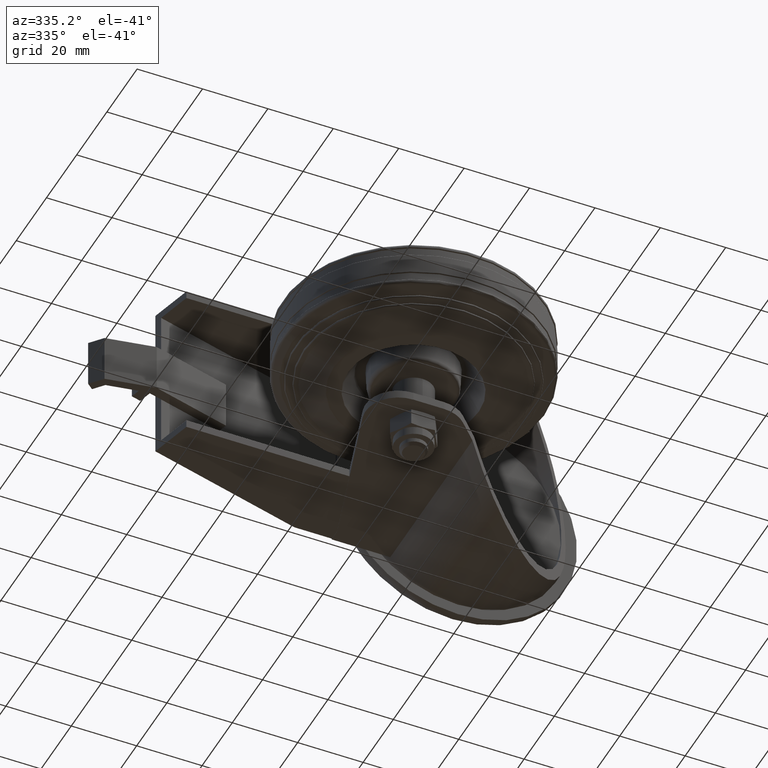
[diagram: clean part render]
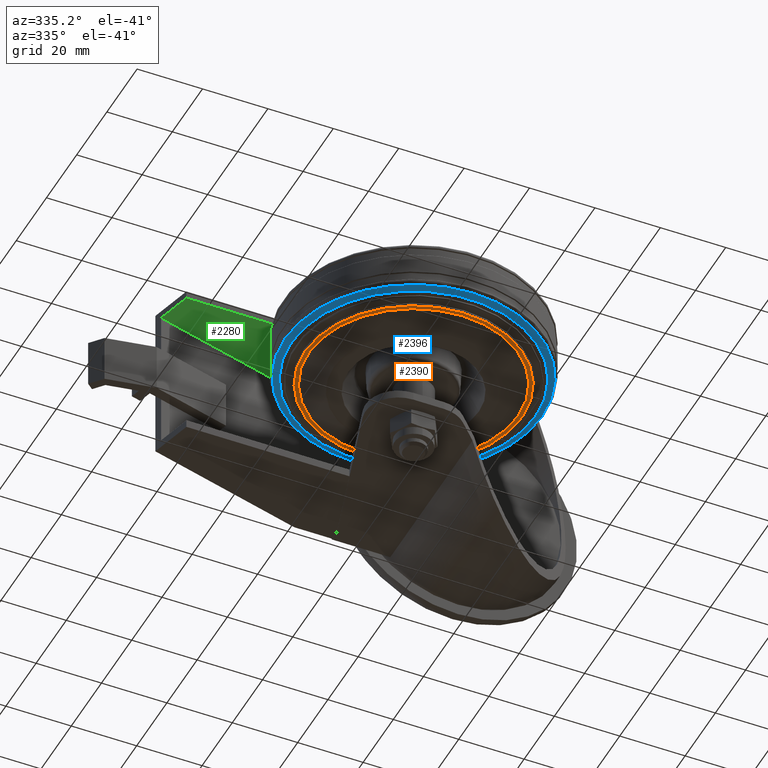
[diagram: same view with three faces highlighted in distinct colors, each labeled with its STEP entity id]
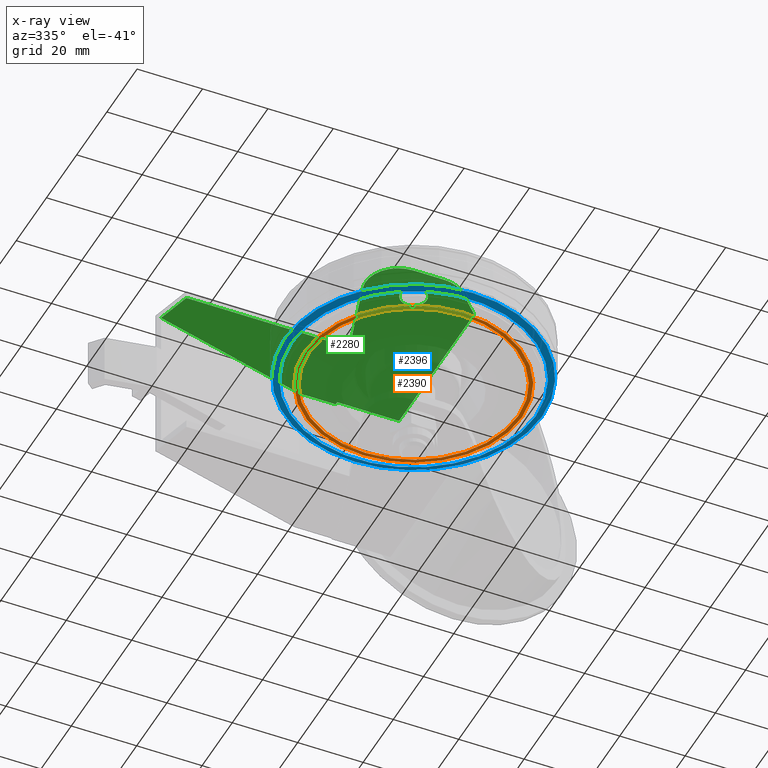
[diagram: x-ray of the same camera — body ghosted, the three highlighted faces saturated]
A machine part, auxiliary view with three faces highlighted in distinct colors.
The next image is the same camera in x-ray (body ghosted, the three faces saturated) — at least one of them is partly hidden behind the body in this view.
Their STEP definitions:

[orange] entity #2390 — the highlighted planar face has unit normal (0, 0, -1).
#203=FACE_BOUND('',#584,.T.);
#276=PLANE('',#2759);
#409=FACE_OUTER_BOUND('',#583,.T.);
#583=EDGE_LOOP('',(#2149));
#584=EDGE_LOOP('',(#2150));
#710=CIRCLE('',#2758,32.);
#711=CIRCLE('',#2760,33.2100878656983);
#1219=VERTEX_POINT('',#4253);
#1220=VERTEX_POINT('',#4257);
#1531=EDGE_CURVE('',#1219,#1219,#710,.T.);
#1533=EDGE_CURVE('',#1220,#1220,#711,.T.);
#2149=ORIENTED_EDGE('',*,*,#1533,.T.);
#2150=ORIENTED_EDGE('',*,*,#1531,.F.);
#2390=ADVANCED_FACE('',(#409,#203),#276,.T.);
#2758=AXIS2_PLACEMENT_3D('',#4254,#3426,#3427);
#2759=AXIS2_PLACEMENT_3D('',#4256,#3429,#3430);
#2760=AXIS2_PLACEMENT_3D('',#4258,#3431,#3432);
#3426=DIRECTION('center_axis',(6.12323399573677E-17,0.,-1.));
#3427=DIRECTION('ref_axis',(-1.,0.,-6.12323399573677E-17));
#3429=DIRECTION('center_axis',(6.12323399573677E-17,0.,-1.));
#3430=DIRECTION('ref_axis',(-1.,0.,-6.12323399573677E-17));
#3431=DIRECTION('center_axis',(6.12323399573677E-17,0.,-1.));
#3432=DIRECTION('ref_axis',(-1.,0.,-6.12323399573677E-17));
#4253=CARTESIAN_POINT('',(-32.,0.,-9.74537909368268));
#4254=CARTESIAN_POINT('Origin',(5.96732365677801E-16,0.,-9.74537909368268));
#4256=CARTESIAN_POINT('Origin',(-32.,0.,-9.74537909368268));
#4257=CARTESIAN_POINT('',(33.2100878656983,-4.06706278041298E-15,-9.74537909368268));
#4258=CARTESIAN_POINT('Origin',(5.96732365677801E-16,0.,-9.74537909368268));

[blue] entity #2396 — the highlighted conical surface has half-angle 71 deg.
#101=CONICAL_SURFACE('',#2775,37.3150280989202,1.23918376891597);
#415=FACE_OUTER_BOUND('',#592,.T.);
#592=EDGE_LOOP('',(#2168,#2169,#2170,#2171,#2172,#2173));
#719=CIRCLE('',#2773,37.3150280989202);
#720=CIRCLE('',#2774,37.3150280989202);
#721=CIRCLE('',#2776,39.3255681544572);
#722=CIRCLE('',#2777,39.3255681544572);
#886=LINE('',#4284,#1030);
#1030=VECTOR('',#3467,37.3150280989202);
#1225=VERTEX_POINT('',#4274);
#1226=VERTEX_POINT('',#4276);
#1227=VERTEX_POINT('',#4280);
#1228=VERTEX_POINT('',#4281);
#1541=EDGE_CURVE('',#1225,#1226,#719,.T.);
#1542=EDGE_CURVE('',#1226,#1225,#720,.T.);
#1543=EDGE_CURVE('',#1227,#1228,#721,.T.);
#1544=EDGE_CURVE('',#1228,#1227,#722,.T.);
#1545=EDGE_CURVE('',#1227,#1226,#886,.T.);
#2168=ORIENTED_EDGE('',*,*,#1543,.T.);
#2169=ORIENTED_EDGE('',*,*,#1544,.T.);
#2170=ORIENTED_EDGE('',*,*,#1545,.T.);
#2171=ORIENTED_EDGE('',*,*,#1541,.F.);
#2172=ORIENTED_EDGE('',*,*,#1542,.F.);
#2173=ORIENTED_EDGE('',*,*,#1545,.F.);
#2396=ADVANCED_FACE('',(#415),#101,.T.);
#2773=AXIS2_PLACEMENT_3D('',#4277,#3457,#3458);
#2774=AXIS2_PLACEMENT_3D('',#4278,#3459,#3460);
#2775=AXIS2_PLACEMENT_3D('',#4279,#3461,#3462);
#2776=AXIS2_PLACEMENT_3D('',#4282,#3463,#3464);
#2777=AXIS2_PLACEMENT_3D('',#4283,#3465,#3466);
#3457=DIRECTION('center_axis',(6.12323399573677E-17,0.,-1.));
#3458=DIRECTION('ref_axis',(-1.,0.,-6.12323399573677E-17));
#3459=DIRECTION('center_axis',(6.12323399573677E-17,0.,-1.));
#3460=DIRECTION('ref_axis',(-1.,0.,-6.12323399573677E-17));
#3461=DIRECTION('center_axis',(-6.12323399573677E-17,0.,1.));
#3462=DIRECTION('ref_axis',(1.,0.,6.12323399573677E-17));
#3463=DIRECTION('center_axis',(6.12323399573677E-17,0.,-1.));
#3464=DIRECTION('ref_axis',(-1.,0.,-6.12323399573677E-17));
#3465=DIRECTION('center_axis',(6.12323399573677E-17,0.,-1.));
#3466=DIRECTION('ref_axis',(-1.,0.,-6.12323399573677E-17));
#3467=DIRECTION('',(0.945518575599316,1.15792629714207E-16,-0.32556815445716));
#4274=CARTESIAN_POINT('',(37.3150280989202,-4.56977297214362E-15,-7.91526815381396));
#4276=CARTESIAN_POINT('',(-37.3150280989202,0.,-7.91526815381397));
#4277=CARTESIAN_POINT('Origin',(4.84670390448063E-16,0.,-7.91526815381396));
#4278=CARTESIAN_POINT('Origin',(4.84670390448063E-16,0.,-7.91526815381396));
#4279=CARTESIAN_POINT('Origin',(4.84670390448063E-16,0.,-7.91526815381396));
#4280=CARTESIAN_POINT('',(-39.3255681544572,0.,-7.22298369506767));
#4281=CARTESIAN_POINT('',(39.3255681544572,-4.81599311650071E-15,-7.22298369506767));
#4282=CARTESIAN_POINT('Origin',(4.42280193122907E-16,0.,-7.22298369506767));
#4283=CARTESIAN_POINT('Origin',(4.42280193122907E-16,0.,-7.22298369506767));
#4284=CARTESIAN_POINT('',(-37.3150280989202,-4.56977297214362E-15,-7.91526815381396));

[green] entity #2280 — the highlighted planar face has unit normal (0, 0, -1).
#183=FACE_BOUND('',#454,.T.);
#219=PLANE('',#2563);
#299=FACE_OUTER_BOUND('',#453,.T.);
#453=EDGE_LOOP('',(#1676,#1677,#1678,#1679,#1680,#1681,#1682,#1683,#1684,
#1685,#1686,#1687));
#454=EDGE_LOOP('',(#1688));
#614=CIRCLE('',#2536,10.);
#618=CIRCLE('',#2547,10.);
#627=CIRCLE('',#2564,4.);
#759=LINE('',#3593,#903);
#772=LINE('',#3629,#916);
#777=LINE('',#3641,#921);
#783=LINE('',#3660,#927);
#793=LINE('',#3689,#937);
#794=LINE('',#3691,#938);
#795=LINE('',#3693,#939);
#796=LINE('',#3695,#940);
#797=LINE('',#3697,#941);
#798=LINE('',#3698,#942);
#903=VECTOR('',#2852,1000.);
#916=VECTOR('',#2881,1000.);
#921=VECTOR('',#2892,1000.);
#927=VECTOR('',#2916,1000.);
#937=VECTOR('',#2946,1000.);
#938=VECTOR('',#2947,1000.);
#939=VECTOR('',#2948,1000.);
#940=VECTOR('',#2949,1000.);
#941=VECTOR('',#2950,1000.);
#942=VECTOR('',#2951,1000.);
#1051=VERTEX_POINT('',#3590);
#1052=VERTEX_POINT('',#3592);
#1059=VERTEX_POINT('',#3610);
#1060=VERTEX_POINT('',#3611);
#1067=VERTEX_POINT('',#3628);
#1071=VERTEX_POINT('',#3639);
#1075=VERTEX_POINT('',#3659);
#1084=VERTEX_POINT('',#3688);
#1085=VERTEX_POINT('',#3690);
#1086=VERTEX_POINT('',#3692);
#1087=VERTEX_POINT('',#3694);
#1088=VERTEX_POINT('',#3696);
#1089=VERTEX_POINT('',#3699);
#1259=EDGE_CURVE('',#1051,#1052,#759,.T.);
#1268=EDGE_CURVE('',#1059,#1060,#614,.T.);
#1276=EDGE_CURVE('',#1059,#1067,#772,.T.);
#1283=EDGE_CURVE('',#1060,#1071,#777,.T.);
#1288=EDGE_CURVE('',#1071,#1052,#618,.T.);
#1294=EDGE_CURVE('',#1067,#1075,#783,.F.);
#1308=EDGE_CURVE('',#1084,#1051,#793,.T.);
#1309=EDGE_CURVE('',#1085,#1084,#794,.T.);
#1310=EDGE_CURVE('',#1086,#1085,#795,.T.);
#1311=EDGE_CURVE('',#1087,#1086,#796,.T.);
#1312=EDGE_CURVE('',#1088,#1087,#797,.T.);
#1313=EDGE_CURVE('',#1075,#1088,#798,.T.);
#1314=EDGE_CURVE('',#1089,#1089,#627,.F.);
#1676=ORIENTED_EDGE('',*,*,#1288,.T.);
#1677=ORIENTED_EDGE('',*,*,#1259,.F.);
#1678=ORIENTED_EDGE('',*,*,#1308,.F.);
#1679=ORIENTED_EDGE('',*,*,#1309,.F.);
#1680=ORIENTED_EDGE('',*,*,#1310,.F.);
#1681=ORIENTED_EDGE('',*,*,#1311,.F.);
#1682=ORIENTED_EDGE('',*,*,#1312,.F.);
#1683=ORIENTED_EDGE('',*,*,#1313,.F.);
#1684=ORIENTED_EDGE('',*,*,#1294,.F.);
#1685=ORIENTED_EDGE('',*,*,#1276,.F.);
#1686=ORIENTED_EDGE('',*,*,#1268,.T.);
#1687=ORIENTED_EDGE('',*,*,#1283,.T.);
#1688=ORIENTED_EDGE('',*,*,#1314,.T.);
#2280=ADVANCED_FACE('',(#299,#183),#219,.T.);
#2536=AXIS2_PLACEMENT_3D('',#3612,#2865,#2866);
#2547=AXIS2_PLACEMENT_3D('',#3650,#2901,#2902);
#2563=AXIS2_PLACEMENT_3D('',#3687,#2944,#2945);
#2564=AXIS2_PLACEMENT_3D('',#3700,#2952,#2953);
#2852=DIRECTION('',(-0.283390294519664,-0.959004661600796,0.));
#2865=DIRECTION('center_axis',(0.,0.,-1.));
#2866=DIRECTION('ref_axis',(-1.,0.,0.));
#2881=DIRECTION('',(0.695210816005559,0.718805899606343,0.));
#2892=DIRECTION('',(-1.,0.,0.));
#2901=DIRECTION('center_axis',(0.,0.,-1.));
#2902=DIRECTION('ref_axis',(-1.,0.,0.));
#2916=DIRECTION('',(0.,-1.,0.));
#2944=DIRECTION('center_axis',(0.,0.,-1.));
#2945=DIRECTION('ref_axis',(-1.,0.,0.));
#2946=DIRECTION('',(1.,0.,0.));
#2947=DIRECTION('',(0.258819045102521,-0.965925826289068,0.));
#2948=DIRECTION('',(-0.965925826289068,-0.258819045102521,0.));
#2949=DIRECTION('',(-1.,0.,0.));
#2950=DIRECTION('',(0.,1.,0.));
#2951=DIRECTION('',(-1.,0.,0.));
#2952=DIRECTION('center_axis',(0.,0.,-1.));
#2953=DIRECTION('ref_axis',(-1.,0.,0.));
#3590=CARTESIAN_POINT('',(-7.14885363127326,27.,22.5));
#3592=CARTESIAN_POINT('',(-14.290046616008,2.83390294519664,22.5));
#3593=CARTESIAN_POINT('',(-14.290046616008,2.83390294519664,22.5));
#3610=CARTESIAN_POINT('',(11.8880589960634,-6.95210816005559,22.5));
#3611=CARTESIAN_POINT('',(4.7,-9.99999999999999,22.5));
#3612=CARTESIAN_POINT('Origin',(4.69999999999999,6.93889390390723E-15,22.5));
#3628=CARTESIAN_POINT('',(18.408739718026,-0.210119018795529,22.5));
#3629=CARTESIAN_POINT('',(72.,55.2,22.5));
#3639=CARTESIAN_POINT('',(-4.7,-9.99999999999999,22.5));
#3641=CARTESIAN_POINT('',(25.,-9.99999999999999,22.5));
#3650=CARTESIAN_POINT('Origin',(-4.7,1.73472347597681E-15,22.5));
#3659=CARTESIAN_POINT('',(18.408739718026,49.5,22.5));
#3660=CARTESIAN_POINT('',(18.408739718026,-10.,22.5));
#3687=CARTESIAN_POINT('Origin',(25.,49.5,22.5));
#3688=CARTESIAN_POINT('',(-57.,27.,22.5));
#3689=CARTESIAN_POINT('',(-57.,27.,22.5));
#3690=CARTESIAN_POINT('',(-59.8362918888483,37.5851854342773,22.5));
#3691=CARTESIAN_POINT('',(-59.8362918888483,37.5851854342773,22.5));
#3692=CARTESIAN_POINT('',(-11.6375477592407,50.5,22.5));
#3693=CARTESIAN_POINT('',(-11.6375477592407,50.5,22.5));
#3694=CARTESIAN_POINT('',(-0.499999999999998,50.5,22.5));
#3695=CARTESIAN_POINT('',(-0.499999999999998,50.5,22.5));
#3696=CARTESIAN_POINT('',(-0.499999999999998,49.5,22.5));
#3697=CARTESIAN_POINT('',(-0.499999999999998,49.5,22.5));
#3698=CARTESIAN_POINT('',(25.,49.5,22.5));
#3699=CARTESIAN_POINT('',(4.,-4.89858719658941E-16,22.5));
#3700=CARTESIAN_POINT('Origin',(0.,0.,22.5));